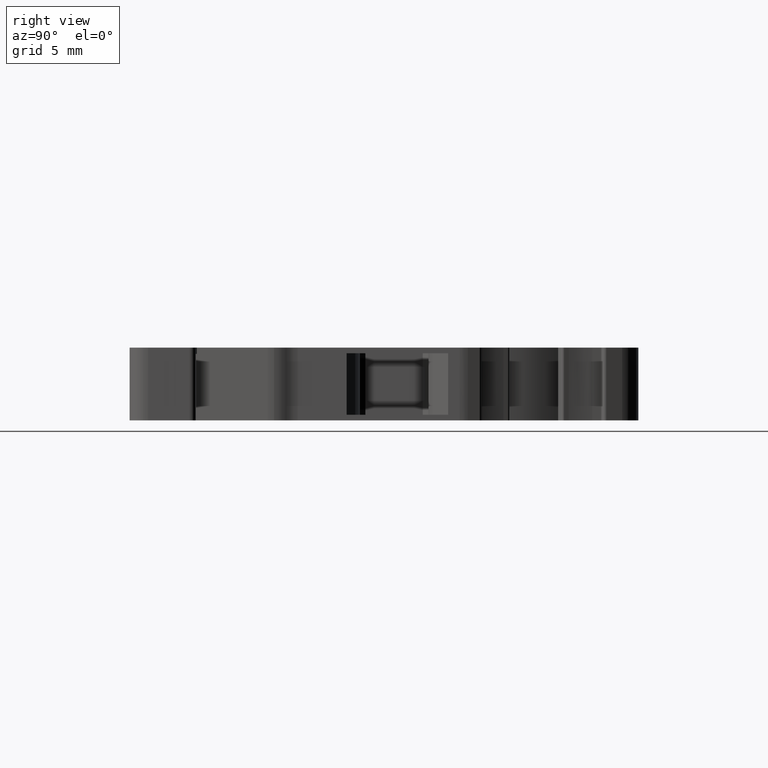
[diagram: clean part render]
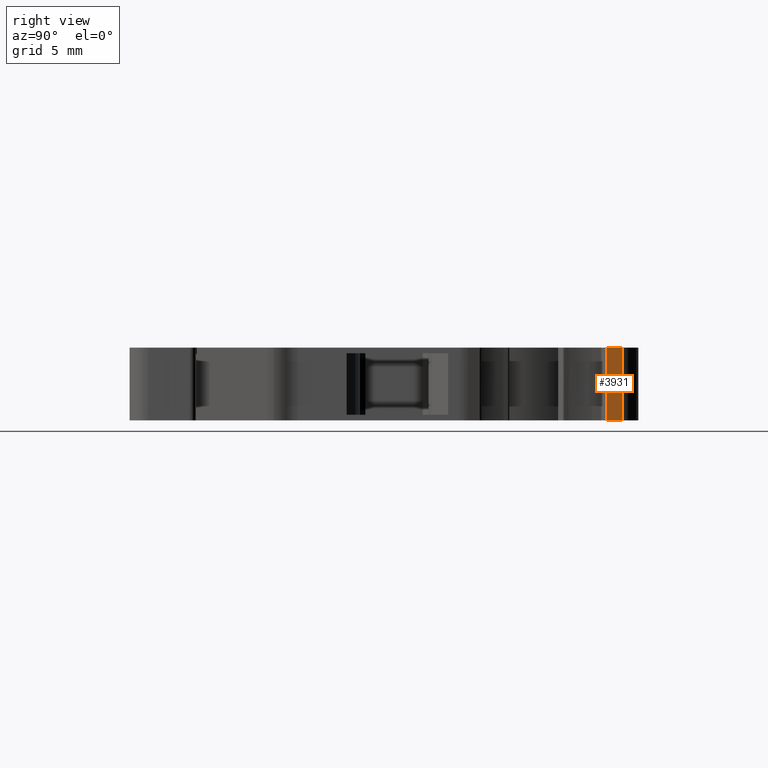
[diagram: same view with one face highlighted and labeled with its STEP entity id]
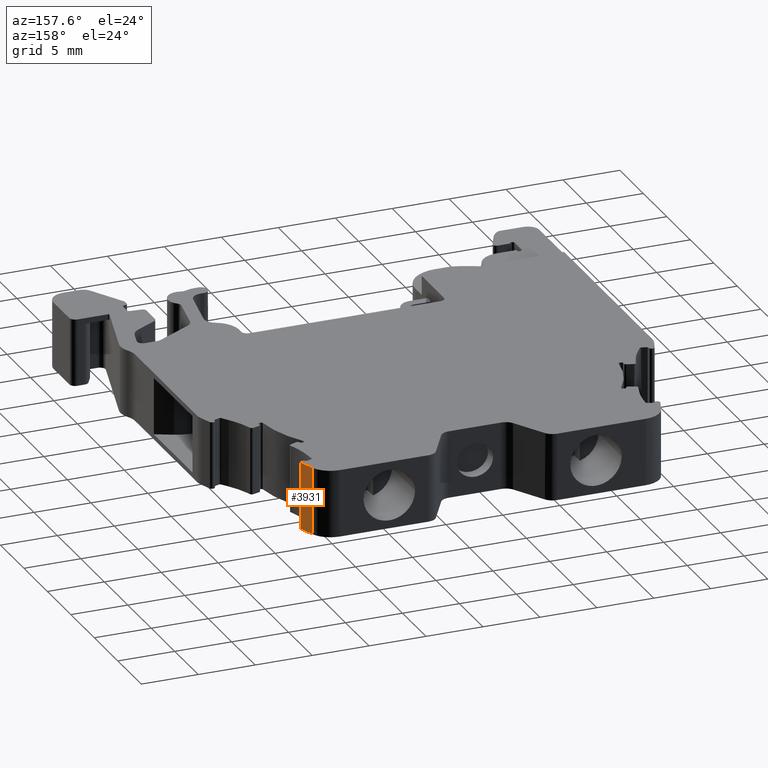
[diagram: same view with one face highlighted and labeled with its STEP entity id]
A machine part, right view. The second image highlights one B-rep face of the part: STEP entity #3931.
A second angle (auxiliary view) of the same face is appended — the face is thin or edge-on in the first view.
In plain terms, the highlighted planar face has unit normal (0.9397, 0.342, -0).
Its self-contained STEP definition (entity closure, byte-faithful):
#50 = EDGE_LOOP ( 'NONE', ( #6383, #6415, #6421, #6437 ) ) ;
#164 = DIRECTION ( 'NONE',  ( -0.0000000000000000000, -0.0000000000000000000, -1.000000000000000000 ) ) ;
#783 = VERTEX_POINT ( 'NONE', #7063 ) ;
#794 = VERTEX_POINT ( 'NONE', #7092 ) ;
#887 = VERTEX_POINT ( 'NONE', #7192 ) ;
#897 = VERTEX_POINT ( 'NONE', #7185 ) ;
#955 = EDGE_CURVE ( 'NONE', #783, #887, #6809, .T. ) ;
#968 = EDGE_CURVE ( 'NONE', #794, #897, #6833, .T. ) ;
#1248 = VECTOR ( 'NONE', #164, 1000.000000000000000 ) ;
#1252 = VECTOR ( 'NONE', #6851, 1000.000000000000000 ) ;
#1648 = AXIS2_PLACEMENT_3D ( 'NONE', #5441, #5483, #5437 ) ;
#3144 = CARTESIAN_POINT ( 'NONE',  ( 1701.683261858580900, 364.0313729007883700, -3.049999999943091100 ) ) ;
#3145 = CARTESIAN_POINT ( 'NONE',  ( 1701.530224041035400, 364.4518406353811300, -3.049999999943092500 ) ) ;
#3155 = CARTESIAN_POINT ( 'NONE',  ( 1701.836299676126400, 363.6109051661956600, -3.049999999943091100 ) ) ;
#3172 = CARTESIAN_POINT ( 'NONE',  ( 1701.989337493671400, 363.1904374316027300, -3.049999999943092500 ) ) ;
#3294 = CARTESIAN_POINT ( 'NONE',  ( 1701.836299676126400, 363.6109051661956600, 2.850000000059714500 ) ) ;
#3301 = CARTESIAN_POINT ( 'NONE',  ( 1701.989337493671400, 363.1904374316027900, 2.850000000059717200 ) ) ;
#3324 = CARTESIAN_POINT ( 'NONE',  ( 1701.530224041035400, 364.4518406353811300, 2.850000000059717200 ) ) ;
#3338 = CARTESIAN_POINT ( 'NONE',  ( 1701.683261858580900, 364.0313729007883700, 2.850000000059714500 ) ) ;
#3931 = ADVANCED_FACE ( 'NONE', ( #5507 ), #5430, .T. ) ;
#4415 = EDGE_CURVE ( 'NONE', #897, #887, #6596, .T. ) ;
#4447 = EDGE_CURVE ( 'NONE', #783, #794, #6613, .T. ) ;
#5430 = PLANE ( 'NONE',  #1648 ) ;
#5437 = DIRECTION ( 'NONE',  ( -0.3420202966319819100, 0.9396925649869595200, 0.0000000000000000000 ) ) ;
#5441 = CARTESIAN_POINT ( 'NONE',  ( 1701.989337493672300, 363.1904374316029000, -62.07273415799103600 ) ) ;
#5483 = DIRECTION ( 'NONE',  ( 0.9396925649869595200, 0.3420202966319819100, -0.0000000000000000000 ) ) ;
#5507 = FACE_OUTER_BOUND ( 'NONE', #50, .T. ) ;
#6383 = ORIENTED_EDGE ( 'NONE', *, *, #4415, .T. ) ;
#6415 = ORIENTED_EDGE ( 'NONE', *, *, #955, .F. ) ;
#6421 = ORIENTED_EDGE ( 'NONE', *, *, #4447, .T. ) ;
#6437 = ORIENTED_EDGE ( 'NONE', *, *, #968, .T. ) ;
#6596 = B_SPLINE_CURVE_WITH_KNOTS ( 'NONE', 3,
 ( #3172, #3155, #3144, #3145 ),
 .UNSPECIFIED., .F., .F.,
 ( 4, 4 ),
 ( 0.0000000000000000000, 1.000000000000000000 ),
 .UNSPECIFIED. ) ;
#6613 = B_SPLINE_CURVE_WITH_KNOTS ( 'NONE', 3,
 ( #3324, #3338, #3294, #3301 ),
 .UNSPECIFIED., .F., .F.,
 ( 4, 4 ),
 ( 0.0000000000000000000, 1.000000000000000000 ),
 .UNSPECIFIED. ) ;
#6809 = LINE ( 'NONE', #6847, #1252 ) ;
#6833 = LINE ( 'NONE', #7332, #1248 ) ;
#6847 = CARTESIAN_POINT ( 'NONE',  ( 1701.530224041035400, 364.4518406353811300, -62.07273415799103600 ) ) ;
#6851 = DIRECTION ( 'NONE',  ( -0.0000000000000000000, -0.0000000000000000000, -1.000000000000000000 ) ) ;
#7063 = CARTESIAN_POINT ( 'NONE',  ( 1701.530224041035400, 364.4518406353811300, 2.850000000059717200 ) ) ;
#7092 = CARTESIAN_POINT ( 'NONE',  ( 1701.989337493671400, 363.1904374316027900, 2.850000000059717200 ) ) ;
#7185 = CARTESIAN_POINT ( 'NONE',  ( 1701.989337493671400, 363.1904374316027300, -3.049999999943092500 ) ) ;
#7192 = CARTESIAN_POINT ( 'NONE',  ( 1701.530224041035400, 364.4518406353811300, -3.049999999943092500 ) ) ;
#7332 = CARTESIAN_POINT ( 'NONE',  ( 1701.989337493672300, 363.1904374316030200, -62.07273415799103600 ) ) ;